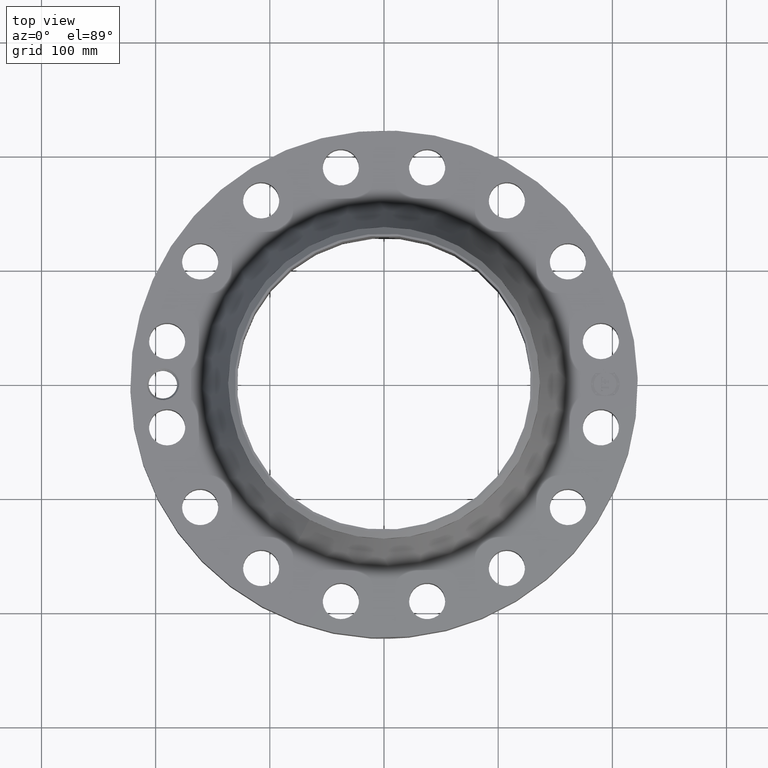
[diagram: clean part render]
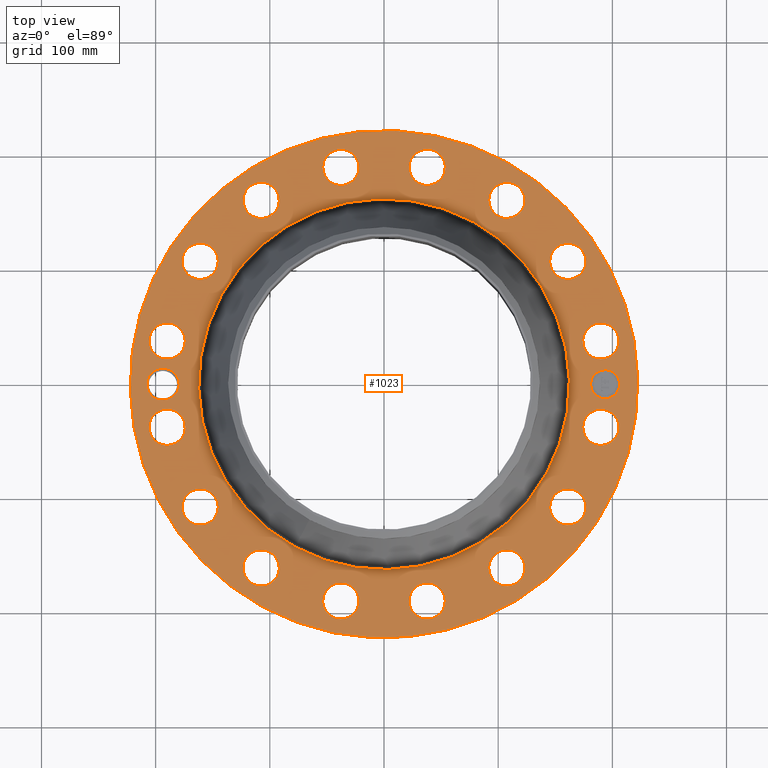
[diagram: same view with one face highlighted and labeled with its STEP entity id]
A machine part, top view. The second image highlights one B-rep face of the part: STEP entity #1023.
In plain terms, the highlighted planar face has unit normal (0, 0, -1).
Its self-contained STEP definition (entity closure, byte-faithful):
#58=AXIS2_PLACEMENT_3D('Circle Axis2P3D',#56,#57,$) ;
#539=AXIS2_PLACEMENT_3D('Circle Axis2P3D',#537,#538,$) ;
#639=AXIS2_PLACEMENT_3D('Plane Axis2P3D',#636,#637,#638) ;
#675=AXIS2_PLACEMENT_3D('Circle Axis2P3D',#673,#674,$) ;
#682=AXIS2_PLACEMENT_3D('Circle Axis2P3D',#680,#681,$) ;
#689=AXIS2_PLACEMENT_3D('Circle Axis2P3D',#687,#688,$) ;
#701=AXIS2_PLACEMENT_3D('Circle Axis2P3D',#699,#700,$) ;
#710=AXIS2_PLACEMENT_3D('Circle Axis2P3D',#708,#709,$) ;
#719=AXIS2_PLACEMENT_3D('Circle Axis2P3D',#717,#718,$) ;
#728=AXIS2_PLACEMENT_3D('Circle Axis2P3D',#726,#727,$) ;
#737=AXIS2_PLACEMENT_3D('Circle Axis2P3D',#735,#736,$) ;
#746=AXIS2_PLACEMENT_3D('Circle Axis2P3D',#744,#745,$) ;
#755=AXIS2_PLACEMENT_3D('Circle Axis2P3D',#753,#754,$) ;
#764=AXIS2_PLACEMENT_3D('Circle Axis2P3D',#762,#763,$) ;
#773=AXIS2_PLACEMENT_3D('Circle Axis2P3D',#771,#772,$) ;
#782=AXIS2_PLACEMENT_3D('Circle Axis2P3D',#780,#781,$) ;
#791=AXIS2_PLACEMENT_3D('Circle Axis2P3D',#789,#790,$) ;
#800=AXIS2_PLACEMENT_3D('Circle Axis2P3D',#798,#799,$) ;
#809=AXIS2_PLACEMENT_3D('Circle Axis2P3D',#807,#808,$) ;
#818=AXIS2_PLACEMENT_3D('Circle Axis2P3D',#816,#817,$) ;
#827=AXIS2_PLACEMENT_3D('Circle Axis2P3D',#825,#826,$) ;
#836=AXIS2_PLACEMENT_3D('Circle Axis2P3D',#834,#835,$) ;
#845=AXIS2_PLACEMENT_3D('Circle Axis2P3D',#843,#844,$) ;
#854=AXIS2_PLACEMENT_3D('Circle Axis2P3D',#852,#853,$) ;
#863=AXIS2_PLACEMENT_3D('Circle Axis2P3D',#861,#862,$) ;
#872=AXIS2_PLACEMENT_3D('Circle Axis2P3D',#870,#871,$) ;
#881=AXIS2_PLACEMENT_3D('Circle Axis2P3D',#879,#880,$) ;
#890=AXIS2_PLACEMENT_3D('Circle Axis2P3D',#888,#889,$) ;
#899=AXIS2_PLACEMENT_3D('Circle Axis2P3D',#897,#898,$) ;
#908=AXIS2_PLACEMENT_3D('Circle Axis2P3D',#906,#907,$) ;
#917=AXIS2_PLACEMENT_3D('Circle Axis2P3D',#915,#916,$) ;
#926=AXIS2_PLACEMENT_3D('Circle Axis2P3D',#924,#925,$) ;
#935=AXIS2_PLACEMENT_3D('Circle Axis2P3D',#933,#934,$) ;
#944=AXIS2_PLACEMENT_3D('Circle Axis2P3D',#942,#943,$) ;
#953=AXIS2_PLACEMENT_3D('Circle Axis2P3D',#951,#952,$) ;
#962=AXIS2_PLACEMENT_3D('Circle Axis2P3D',#960,#961,$) ;
#971=AXIS2_PLACEMENT_3D('Circle Axis2P3D',#969,#970,$) ;
#980=AXIS2_PLACEMENT_3D('Circle Axis2P3D',#978,#979,$) ;
#989=AXIS2_PLACEMENT_3D('Circle Axis2P3D',#987,#988,$) ;
#998=AXIS2_PLACEMENT_3D('Circle Axis2P3D',#996,#997,$) ;
#1007=AXIS2_PLACEMENT_3D('Circle Axis2P3D',#1005,#1006,$) ;
#1016=AXIS2_PLACEMENT_3D('Circle Axis2P3D',#1014,#1015,$) ;
#53=CARTESIAN_POINT('Vertex',(-4.1949734628,-7.67884741657,2.37000000001)) ;
#56=CARTESIAN_POINT('Axis2P3D Location',(0.,0.,2.37000000001)) ;
#60=CARTESIAN_POINT('Vertex',(4.1949734628,7.67884741657,2.37000000001)) ;
#537=CARTESIAN_POINT('Axis2P3D Location',(0.,0.,2.37000000001)) ;
#636=CARTESIAN_POINT('Axis2P3D Location',(0.,8.75000000003,2.37000000001)) ;
#646=CARTESIAN_POINT('Control Point',(-7.06250000003,1.1189649382E-015,2.37000000001)) ;
#647=CARTESIAN_POINT('Control Point',(-7.06446298299,0.0486163636857,2.37000000001)) ;
#648=CARTESIAN_POINT('Control Point',(-7.07168281614,0.0969214403365,2.37000000001)) ;
#649=CARTESIAN_POINT('Control Point',(-7.08411697116,0.144150906711,2.37000000001)) ;
#650=CARTESIAN_POINT('Control Point',(-7.10234425253,0.191616400427,2.37000000001)) ;
#651=CARTESIAN_POINT('Control Point',(-7.12563938019,0.236345157382,2.37000000001)) ;
#652=CARTESIAN_POINT('Control Point',(-7.12666372234,0.238288331361,2.37000000001)) ;
#653=CARTESIAN_POINT('Control Point',(-7.12769761217,0.240226185511,2.37000000001)) ;
#654=CARTESIAN_POINT('Control Point',(-7.12874101425,0.242158656953,2.37000000001)) ;
#655=CARTESIAN_POINT('Vertex',(-7.06250000003,1.1189649382E-015,2.37000000001)) ;
#657=CARTESIAN_POINT('Vertex',(-7.12874101425,0.242158656953,2.37000000001)) ;
#661=CARTESIAN_POINT('Control Point',(-7.06250000003,0.,2.37000000001)) ;
#662=CARTESIAN_POINT('Control Point',(-7.06446358948,-0.0486313829775,2.37000000001)) ;
#663=CARTESIAN_POINT('Control Point',(-7.07168728763,-0.09695128634,2.37000000001)) ;
#664=CARTESIAN_POINT('Control Point',(-7.08412001795,-0.14417667737,2.37000000001)) ;
#665=CARTESIAN_POINT('Control Point',(-7.10236431676,-0.191689550631,2.37000000001)) ;
#666=CARTESIAN_POINT('Control Point',(-7.12567489204,-0.236441716072,2.37000000001)) ;
#667=CARTESIAN_POINT('Control Point',(-7.12673354021,-0.238448876166,2.37000000001)) ;
#668=CARTESIAN_POINT('Control Point',(-7.12780235955,-0.240450312534,2.37000000001)) ;
#669=CARTESIAN_POINT('Control Point',(-7.12888131021,-0.242445956271,2.37000000001)) ;
#670=CARTESIAN_POINT('Vertex',(-7.12888131021,-0.242445956271,2.37000000001)) ;
#673=CARTESIAN_POINT('Axis2P3D Location',(-7.62500000003,-2.23792987641E-015,2.37000000001)) ;
#677=CARTESIAN_POINT('Vertex',(-7.14040768518,-0.264733988163,2.37000000001)) ;
#680=CARTESIAN_POINT('Axis2P3D Location',(-7.62500000003,-2.23792987641E-015,2.37000000001)) ;
#684=CARTESIAN_POINT('Vertex',(-8.10959231488,0.264733988163,2.37000000001)) ;
#687=CARTESIAN_POINT('Axis2P3D Location',(-7.62500000003,-2.23792987641E-015,2.37000000001)) ;
#699=CARTESIAN_POINT('Axis2P3D Location',(7.4784877631,-1.48756370538,2.37000000001)) ;
#703=CARTESIAN_POINT('Vertex',(6.92999866192,-1.18792274375,2.37000000001)) ;
#705=CARTESIAN_POINT('Vertex',(8.02697686429,-1.78720466701,2.37000000001)) ;
#708=CARTESIAN_POINT('Axis2P3D Location',(7.4784877631,-1.48756370538,2.37000000001)) ;
#717=CARTESIAN_POINT('Axis2P3D Location',(0.,0.,2.37000000001)) ;
#721=CARTESIAN_POINT('Vertex',(-3.06419420851,-5.60896987562,2.37000000001)) ;
#723=CARTESIAN_POINT('Vertex',(3.06419420851,5.60896987562,2.37000000001)) ;
#726=CARTESIAN_POINT('Axis2P3D Location',(0.,0.,2.37000000001)) ;
#735=CARTESIAN_POINT('Axis2P3D Location',(6.33995579383,-4.23622302679,2.37000000001)) ;
#739=CARTESIAN_POINT('Vertex',(6.73202601655,-4.7229528702,2.37000000001)) ;
#741=CARTESIAN_POINT('Vertex',(5.94788557112,-3.74949318338,2.37000000001)) ;
#744=CARTESIAN_POINT('Axis2P3D Location',(6.33995579383,-4.23622302679,2.37000000001)) ;
#753=CARTESIAN_POINT('Axis2P3D Location',(4.23622302679,-6.33995579383,2.37000000001)) ;
#757=CARTESIAN_POINT('Vertex',(4.41218523376,-6.93967431258,2.37000000001)) ;
#759=CARTESIAN_POINT('Vertex',(4.06026081983,-5.74023727509,2.37000000001)) ;
#762=CARTESIAN_POINT('Axis2P3D Location',(4.23622302679,-6.33995579383,2.37000000001)) ;
#771=CARTESIAN_POINT('Axis2P3D Location',(1.48756370538,-7.4784877631,2.37000000001)) ;
#775=CARTESIAN_POINT('Vertex',(1.42062924568,-8.09989324917,2.37000000001)) ;
#777=CARTESIAN_POINT('Vertex',(1.55449816507,-6.85708227704,2.37000000001)) ;
#780=CARTESIAN_POINT('Axis2P3D Location',(1.48756370538,-7.4784877631,2.37000000001)) ;
#789=CARTESIAN_POINT('Axis2P3D Location',(-1.48756370538,-7.4784877631,2.37000000001)) ;
#793=CARTESIAN_POINT('Vertex',(-1.78720466701,-8.02697686429,2.37000000001)) ;
#795=CARTESIAN_POINT('Vertex',(-1.18792274375,-6.92999866192,2.37000000001)) ;
#798=CARTESIAN_POINT('Axis2P3D Location',(-1.48756370538,-7.4784877631,2.37000000001)) ;
#807=CARTESIAN_POINT('Axis2P3D Location',(-4.23622302679,-6.33995579383,2.37000000001)) ;
#811=CARTESIAN_POINT('Vertex',(-4.7229528702,-6.73202601655,2.37000000001)) ;
#813=CARTESIAN_POINT('Vertex',(-3.74949318338,-5.94788557112,2.37000000001)) ;
#816=CARTESIAN_POINT('Axis2P3D Location',(-4.23622302679,-6.33995579383,2.37000000001)) ;
#825=CARTESIAN_POINT('Axis2P3D Location',(-6.33995579383,-4.23622302679,2.37000000001)) ;
#829=CARTESIAN_POINT('Vertex',(-6.93967431258,-4.41218523376,2.37000000001)) ;
#831=CARTESIAN_POINT('Vertex',(-5.74023727509,-4.06026081983,2.37000000001)) ;
#834=CARTESIAN_POINT('Axis2P3D Location',(-6.33995579383,-4.23622302679,2.37000000001)) ;
#843=CARTESIAN_POINT('Axis2P3D Location',(-7.4784877631,-1.48756370538,2.37000000001)) ;
#847=CARTESIAN_POINT('Vertex',(-8.09989324917,-1.42062924568,2.37000000001)) ;
#849=CARTESIAN_POINT('Vertex',(-6.85708227704,-1.55449816507,2.37000000001)) ;
#852=CARTESIAN_POINT('Axis2P3D Location',(-7.4784877631,-1.48756370538,2.37000000001)) ;
#861=CARTESIAN_POINT('Axis2P3D Location',(-7.4784877631,1.48756370538,2.37000000001)) ;
#865=CARTESIAN_POINT('Vertex',(-8.02697686429,1.78720466701,2.37000000001)) ;
#867=CARTESIAN_POINT('Vertex',(-6.92999866192,1.18792274375,2.37000000001)) ;
#870=CARTESIAN_POINT('Axis2P3D Location',(-7.4784877631,1.48756370538,2.37000000001)) ;
#879=CARTESIAN_POINT('Axis2P3D Location',(-6.33995579383,4.23622302679,2.37000000001)) ;
#883=CARTESIAN_POINT('Vertex',(-6.73202601655,4.7229528702,2.37000000001)) ;
#885=CARTESIAN_POINT('Vertex',(-5.94788557112,3.74949318338,2.37000000001)) ;
#888=CARTESIAN_POINT('Axis2P3D Location',(-6.33995579383,4.23622302679,2.37000000001)) ;
#897=CARTESIAN_POINT('Axis2P3D Location',(-4.23622302679,6.33995579383,2.37000000001)) ;
#901=CARTESIAN_POINT('Vertex',(-4.41218523376,6.93967431258,2.37000000001)) ;
#903=CARTESIAN_POINT('Vertex',(-4.06026081983,5.74023727509,2.37000000001)) ;
#906=CARTESIAN_POINT('Axis2P3D Location',(-4.23622302679,6.33995579383,2.37000000001)) ;
#915=CARTESIAN_POINT('Axis2P3D Location',(-1.48756370538,7.4784877631,2.37000000001)) ;
#919=CARTESIAN_POINT('Vertex',(-1.42062924568,8.09989324917,2.37000000001)) ;
#921=CARTESIAN_POINT('Vertex',(-1.55449816507,6.85708227704,2.37000000001)) ;
#924=CARTESIAN_POINT('Axis2P3D Location',(-1.48756370538,7.4784877631,2.37000000001)) ;
#933=CARTESIAN_POINT('Axis2P3D Location',(1.48756370538,7.4784877631,2.37000000001)) ;
#937=CARTESIAN_POINT('Vertex',(1.78720466701,8.02697686429,2.37000000001)) ;
#939=CARTESIAN_POINT('Vertex',(1.18792274375,6.92999866192,2.37000000001)) ;
#942=CARTESIAN_POINT('Axis2P3D Location',(1.48756370538,7.4784877631,2.37000000001)) ;
#951=CARTESIAN_POINT('Axis2P3D Location',(4.23622302679,6.33995579383,2.37000000001)) ;
#955=CARTESIAN_POINT('Vertex',(4.7229528702,6.73202601655,2.37000000001)) ;
#957=CARTESIAN_POINT('Vertex',(3.74949318338,5.94788557112,2.37000000001)) ;
#960=CARTESIAN_POINT('Axis2P3D Location',(4.23622302679,6.33995579383,2.37000000001)) ;
#969=CARTESIAN_POINT('Axis2P3D Location',(6.33995579383,4.23622302679,2.37000000001)) ;
#973=CARTESIAN_POINT('Vertex',(6.93967431258,4.41218523376,2.37000000001)) ;
#975=CARTESIAN_POINT('Vertex',(5.74023727509,4.06026081983,2.37000000001)) ;
#978=CARTESIAN_POINT('Axis2P3D Location',(6.33995579383,4.23622302679,2.37000000001)) ;
#987=CARTESIAN_POINT('Axis2P3D Location',(7.4784877631,1.48756370538,2.37000000001)) ;
#991=CARTESIAN_POINT('Vertex',(8.09989324917,1.42062924568,2.37000000001)) ;
#993=CARTESIAN_POINT('Vertex',(6.85708227704,1.55449816507,2.37000000001)) ;
#996=CARTESIAN_POINT('Axis2P3D Location',(7.4784877631,1.48756370538,2.37000000001)) ;
#1005=CARTESIAN_POINT('Axis2P3D Location',(7.62500000003,-3.35689481461E-014,2.37000000001)) ;
#1009=CARTESIAN_POINT('Vertex',(7.62500000003,0.499999995002,2.37000000001)) ;
#1011=CARTESIAN_POINT('Vertex',(7.62500000003,-0.499999995002,2.37000000001)) ;
#1014=CARTESIAN_POINT('Axis2P3D Location',(7.62500000003,-3.24499832079E-014,2.37000000001)) ;
#57=DIRECTION('Axis2P3D Direction',(0.,0.,-0.0393700787402)) ;
#538=DIRECTION('Axis2P3D Direction',(0.,0.,-0.0393700787402)) ;
#637=DIRECTION('Axis2P3D Direction',(0.,0.,-0.0393700787402)) ;
#638=DIRECTION('Axis2P3D XDirection',(0.0393700787402,0.,0.)) ;
#674=DIRECTION('Axis2P3D Direction',(0.,0.,-0.0393700787402)) ;
#681=DIRECTION('Axis2P3D Direction',(0.,0.,-0.0393700787402)) ;
#688=DIRECTION('Axis2P3D Direction',(0.,0.,-0.0393700787402)) ;
#700=DIRECTION('Axis2P3D Direction',(0.,0.,-0.0393700787402)) ;
#709=DIRECTION('Axis2P3D Direction',(0.,0.,-0.0393700787402)) ;
#718=DIRECTION('Axis2P3D Direction',(0.,0.,-0.0393700787402)) ;
#727=DIRECTION('Axis2P3D Direction',(0.,0.,-0.0393700787402)) ;
#736=DIRECTION('Axis2P3D Direction',(0.,0.,-0.0393700787402)) ;
#745=DIRECTION('Axis2P3D Direction',(0.,0.,-0.0393700787402)) ;
#754=DIRECTION('Axis2P3D Direction',(0.,0.,-0.0393700787402)) ;
#763=DIRECTION('Axis2P3D Direction',(0.,0.,-0.0393700787402)) ;
#772=DIRECTION('Axis2P3D Direction',(0.,0.,-0.0393700787402)) ;
#781=DIRECTION('Axis2P3D Direction',(0.,0.,-0.0393700787402)) ;
#790=DIRECTION('Axis2P3D Direction',(0.,0.,-0.0393700787402)) ;
#799=DIRECTION('Axis2P3D Direction',(0.,0.,-0.0393700787402)) ;
#808=DIRECTION('Axis2P3D Direction',(0.,0.,-0.0393700787402)) ;
#817=DIRECTION('Axis2P3D Direction',(0.,0.,-0.0393700787402)) ;
#826=DIRECTION('Axis2P3D Direction',(0.,0.,-0.0393700787402)) ;
#835=DIRECTION('Axis2P3D Direction',(0.,0.,-0.0393700787402)) ;
#844=DIRECTION('Axis2P3D Direction',(0.,0.,-0.0393700787402)) ;
#853=DIRECTION('Axis2P3D Direction',(0.,0.,-0.0393700787402)) ;
#862=DIRECTION('Axis2P3D Direction',(0.,0.,-0.0393700787402)) ;
#871=DIRECTION('Axis2P3D Direction',(0.,0.,-0.0393700787402)) ;
#880=DIRECTION('Axis2P3D Direction',(0.,0.,-0.0393700787402)) ;
#889=DIRECTION('Axis2P3D Direction',(0.,0.,-0.0393700787402)) ;
#898=DIRECTION('Axis2P3D Direction',(0.,0.,-0.0393700787402)) ;
#907=DIRECTION('Axis2P3D Direction',(0.,0.,-0.0393700787402)) ;
#916=DIRECTION('Axis2P3D Direction',(0.,0.,-0.0393700787402)) ;
#925=DIRECTION('Axis2P3D Direction',(0.,0.,-0.0393700787402)) ;
#934=DIRECTION('Axis2P3D Direction',(0.,0.,-0.0393700787402)) ;
#943=DIRECTION('Axis2P3D Direction',(0.,0.,-0.0393700787402)) ;
#952=DIRECTION('Axis2P3D Direction',(0.,0.,-0.0393700787402)) ;
#961=DIRECTION('Axis2P3D Direction',(0.,0.,-0.0393700787402)) ;
#970=DIRECTION('Axis2P3D Direction',(0.,0.,-0.0393700787402)) ;
#979=DIRECTION('Axis2P3D Direction',(0.,0.,-0.0393700787402)) ;
#988=DIRECTION('Axis2P3D Direction',(0.,0.,-0.0393700787402)) ;
#997=DIRECTION('Axis2P3D Direction',(0.,0.,-0.0393700787402)) ;
#1006=DIRECTION('Axis2P3D Direction',(0.,0.,-0.0393700787402)) ;
#1015=DIRECTION('Axis2P3D Direction',(0.,0.,-0.0393700787402)) ;
#642=ORIENTED_EDGE('',*,*,#541,.F.) ;
#643=ORIENTED_EDGE('',*,*,#62,.F.) ;
#693=ORIENTED_EDGE('',*,*,#659,.F.) ;
#694=ORIENTED_EDGE('',*,*,#672,.T.) ;
#695=ORIENTED_EDGE('',*,*,#679,.T.) ;
#696=ORIENTED_EDGE('',*,*,#686,.T.) ;
#697=ORIENTED_EDGE('',*,*,#691,.T.) ;
#714=ORIENTED_EDGE('',*,*,#707,.T.) ;
#715=ORIENTED_EDGE('',*,*,#712,.T.) ;
#732=ORIENTED_EDGE('',*,*,#725,.T.) ;
#733=ORIENTED_EDGE('',*,*,#730,.T.) ;
#750=ORIENTED_EDGE('',*,*,#743,.T.) ;
#751=ORIENTED_EDGE('',*,*,#748,.T.) ;
#768=ORIENTED_EDGE('',*,*,#761,.T.) ;
#769=ORIENTED_EDGE('',*,*,#766,.T.) ;
#786=ORIENTED_EDGE('',*,*,#779,.T.) ;
#787=ORIENTED_EDGE('',*,*,#784,.T.) ;
#804=ORIENTED_EDGE('',*,*,#797,.T.) ;
#805=ORIENTED_EDGE('',*,*,#802,.T.) ;
#822=ORIENTED_EDGE('',*,*,#815,.T.) ;
#823=ORIENTED_EDGE('',*,*,#820,.T.) ;
#840=ORIENTED_EDGE('',*,*,#833,.T.) ;
#841=ORIENTED_EDGE('',*,*,#838,.T.) ;
#858=ORIENTED_EDGE('',*,*,#851,.T.) ;
#859=ORIENTED_EDGE('',*,*,#856,.T.) ;
#876=ORIENTED_EDGE('',*,*,#869,.T.) ;
#877=ORIENTED_EDGE('',*,*,#874,.T.) ;
#894=ORIENTED_EDGE('',*,*,#887,.T.) ;
#895=ORIENTED_EDGE('',*,*,#892,.T.) ;
#912=ORIENTED_EDGE('',*,*,#905,.T.) ;
#913=ORIENTED_EDGE('',*,*,#910,.T.) ;
#930=ORIENTED_EDGE('',*,*,#923,.T.) ;
#931=ORIENTED_EDGE('',*,*,#928,.T.) ;
#948=ORIENTED_EDGE('',*,*,#941,.T.) ;
#949=ORIENTED_EDGE('',*,*,#946,.T.) ;
#966=ORIENTED_EDGE('',*,*,#959,.T.) ;
#967=ORIENTED_EDGE('',*,*,#964,.T.) ;
#984=ORIENTED_EDGE('',*,*,#977,.T.) ;
#985=ORIENTED_EDGE('',*,*,#982,.T.) ;
#1002=ORIENTED_EDGE('',*,*,#995,.T.) ;
#1003=ORIENTED_EDGE('',*,*,#1000,.T.) ;
#1020=ORIENTED_EDGE('',*,*,#1013,.T.) ;
#1021=ORIENTED_EDGE('',*,*,#1018,.T.) ;
#698=FACE_BOUND('',#692,.T.) ;
#716=FACE_BOUND('',#713,.T.) ;
#734=FACE_BOUND('',#731,.T.) ;
#752=FACE_BOUND('',#749,.T.) ;
#770=FACE_BOUND('',#767,.T.) ;
#788=FACE_BOUND('',#785,.T.) ;
#806=FACE_BOUND('',#803,.T.) ;
#824=FACE_BOUND('',#821,.T.) ;
#842=FACE_BOUND('',#839,.T.) ;
#860=FACE_BOUND('',#857,.T.) ;
#878=FACE_BOUND('',#875,.T.) ;
#896=FACE_BOUND('',#893,.T.) ;
#914=FACE_BOUND('',#911,.T.) ;
#932=FACE_BOUND('',#929,.T.) ;
#950=FACE_BOUND('',#947,.T.) ;
#968=FACE_BOUND('',#965,.T.) ;
#986=FACE_BOUND('',#983,.T.) ;
#1004=FACE_BOUND('',#1001,.T.) ;
#1022=FACE_BOUND('',#1019,.T.) ;
#1023=ADVANCED_FACE('PartBody',(#644,#698,#716,#734,#752,#770,#788,#806,#824,#842,#860,#878,#896,#914,#932,#950,#968,#986,#1004,#1022),#640,.F.) ;
#645=B_SPLINE_CURVE_WITH_KNOTS('',5,(#646,#647,#648,#649,#650,#651,#652,#653,#654),.UNSPECIFIED.,.F.,.U.,(6,3,6),(0.,8.47632753748,8.86238200322),.UNSPECIFIED.) ;
#660=B_SPLINE_CURVE_WITH_KNOTS('',5,(#661,#662,#663,#664,#665,#666,#667,#668,#669),.UNSPECIFIED.,.F.,.U.,(6,3,6),(0.,8.47894617123,8.87826308852),.UNSPECIFIED.) ;
#59=CIRCLE('generated circle',#58,8.75000000003) ;
#540=CIRCLE('generated circle',#539,8.75000000003) ;
#676=CIRCLE('generated circle',#675,0.552190000002) ;
#683=CIRCLE('generated circle',#682,0.552190000002) ;
#690=CIRCLE('generated circle',#689,0.552190000002) ;
#702=CIRCLE('generated circle',#701,0.625000000002) ;
#711=CIRCLE('generated circle',#710,0.625000000002) ;
#720=CIRCLE('generated circle',#719,6.39138711181) ;
#729=CIRCLE('generated circle',#728,6.39138711181) ;
#738=CIRCLE('generated circle',#737,0.625000000003) ;
#747=CIRCLE('generated circle',#746,0.625000000003) ;
#756=CIRCLE('generated circle',#755,0.625000000002) ;
#765=CIRCLE('generated circle',#764,0.625000000002) ;
#774=CIRCLE('generated circle',#773,0.625000000003) ;
#783=CIRCLE('generated circle',#782,0.625000000003) ;
#792=CIRCLE('generated circle',#791,0.625000000002) ;
#801=CIRCLE('generated circle',#800,0.625000000002) ;
#810=CIRCLE('generated circle',#809,0.625000000003) ;
#819=CIRCLE('generated circle',#818,0.625000000003) ;
#828=CIRCLE('generated circle',#827,0.625000000002) ;
#837=CIRCLE('generated circle',#836,0.625000000002) ;
#846=CIRCLE('generated circle',#845,0.625000000003) ;
#855=CIRCLE('generated circle',#854,0.625000000003) ;
#864=CIRCLE('generated circle',#863,0.625000000002) ;
#873=CIRCLE('generated circle',#872,0.625000000002) ;
#882=CIRCLE('generated circle',#881,0.625000000003) ;
#891=CIRCLE('generated circle',#890,0.625000000003) ;
#900=CIRCLE('generated circle',#899,0.625000000002) ;
#909=CIRCLE('generated circle',#908,0.625000000002) ;
#918=CIRCLE('generated circle',#917,0.625000000003) ;
#927=CIRCLE('generated circle',#926,0.625000000003) ;
#936=CIRCLE('generated circle',#935,0.625000000002) ;
#945=CIRCLE('generated circle',#944,0.625000000002) ;
#954=CIRCLE('generated circle',#953,0.625000000003) ;
#963=CIRCLE('generated circle',#962,0.625000000003) ;
#972=CIRCLE('generated circle',#971,0.625000000003) ;
#981=CIRCLE('generated circle',#980,0.625000000003) ;
#990=CIRCLE('generated circle',#989,0.625000000003) ;
#999=CIRCLE('generated circle',#998,0.625000000003) ;
#1008=CIRCLE('generated circle',#1007,0.499999995002) ;
#1017=CIRCLE('generated circle',#1016,0.499999995002) ;
#62=EDGE_CURVE('',#54,#61,#59,.T.) ;
#541=EDGE_CURVE('',#61,#54,#540,.T.) ;
#659=EDGE_CURVE('',#656,#658,#645,.T.) ;
#672=EDGE_CURVE('',#656,#671,#660,.T.) ;
#679=EDGE_CURVE('',#671,#678,#676,.T.) ;
#686=EDGE_CURVE('',#678,#685,#683,.T.) ;
#691=EDGE_CURVE('',#685,#658,#690,.T.) ;
#707=EDGE_CURVE('',#704,#706,#702,.T.) ;
#712=EDGE_CURVE('',#706,#704,#711,.T.) ;
#725=EDGE_CURVE('',#722,#724,#720,.T.) ;
#730=EDGE_CURVE('',#724,#722,#729,.T.) ;
#743=EDGE_CURVE('',#740,#742,#738,.T.) ;
#748=EDGE_CURVE('',#742,#740,#747,.T.) ;
#761=EDGE_CURVE('',#758,#760,#756,.T.) ;
#766=EDGE_CURVE('',#760,#758,#765,.T.) ;
#779=EDGE_CURVE('',#776,#778,#774,.T.) ;
#784=EDGE_CURVE('',#778,#776,#783,.T.) ;
#797=EDGE_CURVE('',#794,#796,#792,.T.) ;
#802=EDGE_CURVE('',#796,#794,#801,.T.) ;
#815=EDGE_CURVE('',#812,#814,#810,.T.) ;
#820=EDGE_CURVE('',#814,#812,#819,.T.) ;
#833=EDGE_CURVE('',#830,#832,#828,.T.) ;
#838=EDGE_CURVE('',#832,#830,#837,.T.) ;
#851=EDGE_CURVE('',#848,#850,#846,.T.) ;
#856=EDGE_CURVE('',#850,#848,#855,.T.) ;
#869=EDGE_CURVE('',#866,#868,#864,.T.) ;
#874=EDGE_CURVE('',#868,#866,#873,.T.) ;
#887=EDGE_CURVE('',#884,#886,#882,.T.) ;
#892=EDGE_CURVE('',#886,#884,#891,.T.) ;
#905=EDGE_CURVE('',#902,#904,#900,.T.) ;
#910=EDGE_CURVE('',#904,#902,#909,.T.) ;
#923=EDGE_CURVE('',#920,#922,#918,.T.) ;
#928=EDGE_CURVE('',#922,#920,#927,.T.) ;
#941=EDGE_CURVE('',#938,#940,#936,.T.) ;
#946=EDGE_CURVE('',#940,#938,#945,.T.) ;
#959=EDGE_CURVE('',#956,#958,#954,.T.) ;
#964=EDGE_CURVE('',#958,#956,#963,.T.) ;
#977=EDGE_CURVE('',#974,#976,#972,.T.) ;
#982=EDGE_CURVE('',#976,#974,#981,.T.) ;
#995=EDGE_CURVE('',#992,#994,#990,.T.) ;
#1000=EDGE_CURVE('',#994,#992,#999,.T.) ;
#1013=EDGE_CURVE('',#1010,#1012,#1008,.T.) ;
#1018=EDGE_CURVE('',#1012,#1010,#1017,.T.) ;
#641=EDGE_LOOP('',(#642,#643)) ;
#692=EDGE_LOOP('',(#693,#694,#695,#696,#697)) ;
#713=EDGE_LOOP('',(#714,#715)) ;
#731=EDGE_LOOP('',(#732,#733)) ;
#749=EDGE_LOOP('',(#750,#751)) ;
#767=EDGE_LOOP('',(#768,#769)) ;
#785=EDGE_LOOP('',(#786,#787)) ;
#803=EDGE_LOOP('',(#804,#805)) ;
#821=EDGE_LOOP('',(#822,#823)) ;
#839=EDGE_LOOP('',(#840,#841)) ;
#857=EDGE_LOOP('',(#858,#859)) ;
#875=EDGE_LOOP('',(#876,#877)) ;
#893=EDGE_LOOP('',(#894,#895)) ;
#911=EDGE_LOOP('',(#912,#913)) ;
#929=EDGE_LOOP('',(#930,#931)) ;
#947=EDGE_LOOP('',(#948,#949)) ;
#965=EDGE_LOOP('',(#966,#967)) ;
#983=EDGE_LOOP('',(#984,#985)) ;
#1001=EDGE_LOOP('',(#1002,#1003)) ;
#1019=EDGE_LOOP('',(#1020,#1021)) ;
#644=FACE_OUTER_BOUND('',#641,.T.) ;
#640=PLANE('',#639) ;
#54=VERTEX_POINT('',#53) ;
#61=VERTEX_POINT('',#60) ;
#656=VERTEX_POINT('',#655) ;
#658=VERTEX_POINT('',#657) ;
#671=VERTEX_POINT('',#670) ;
#678=VERTEX_POINT('',#677) ;
#685=VERTEX_POINT('',#684) ;
#704=VERTEX_POINT('',#703) ;
#706=VERTEX_POINT('',#705) ;
#722=VERTEX_POINT('',#721) ;
#724=VERTEX_POINT('',#723) ;
#740=VERTEX_POINT('',#739) ;
#742=VERTEX_POINT('',#741) ;
#758=VERTEX_POINT('',#757) ;
#760=VERTEX_POINT('',#759) ;
#776=VERTEX_POINT('',#775) ;
#778=VERTEX_POINT('',#777) ;
#794=VERTEX_POINT('',#793) ;
#796=VERTEX_POINT('',#795) ;
#812=VERTEX_POINT('',#811) ;
#814=VERTEX_POINT('',#813) ;
#830=VERTEX_POINT('',#829) ;
#832=VERTEX_POINT('',#831) ;
#848=VERTEX_POINT('',#847) ;
#850=VERTEX_POINT('',#849) ;
#866=VERTEX_POINT('',#865) ;
#868=VERTEX_POINT('',#867) ;
#884=VERTEX_POINT('',#883) ;
#886=VERTEX_POINT('',#885) ;
#902=VERTEX_POINT('',#901) ;
#904=VERTEX_POINT('',#903) ;
#920=VERTEX_POINT('',#919) ;
#922=VERTEX_POINT('',#921) ;
#938=VERTEX_POINT('',#937) ;
#940=VERTEX_POINT('',#939) ;
#956=VERTEX_POINT('',#955) ;
#958=VERTEX_POINT('',#957) ;
#974=VERTEX_POINT('',#973) ;
#976=VERTEX_POINT('',#975) ;
#992=VERTEX_POINT('',#991) ;
#994=VERTEX_POINT('',#993) ;
#1010=VERTEX_POINT('',#1009) ;
#1012=VERTEX_POINT('',#1011) ;